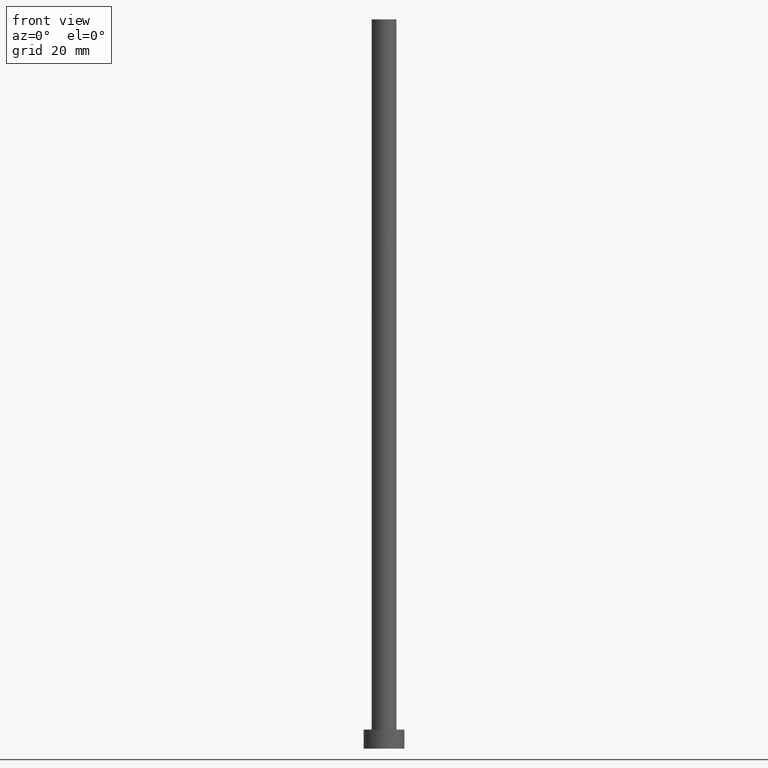
[diagram: clean part render]
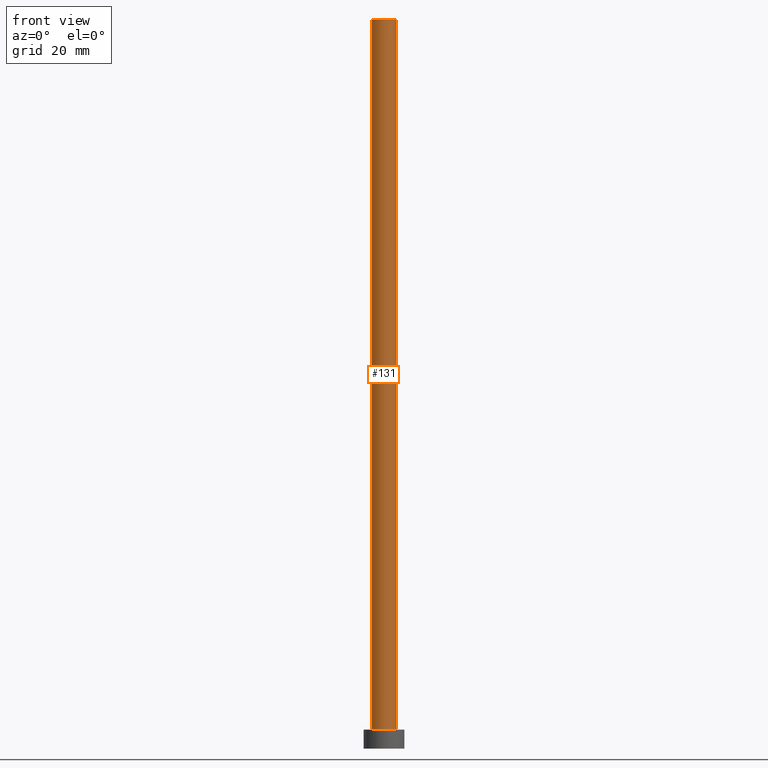
[diagram: same view with one face highlighted and labeled with its STEP entity id]
A machine part, front view. The second image highlights one B-rep face of the part: STEP entity #131.
In plain terms, the highlighted cylindrical surface (edge-blend (fillet) strip) has radius 4.25 mm, axis along (-0, -0, -1).
Its self-contained STEP definition (entity closure, byte-faithful):
#2 = DIRECTION ( 'NONE',  ( -1.000000000000000000, 0.000000000000000000, 0.000000000000000000 ) ) ;
#14 = CARTESIAN_POINT ( 'NONE',  ( -4.250000000000000000, 0.000000000000000000, 250.0000000000000000 ) ) ;
#20 = CARTESIAN_POINT ( 'NONE',  ( 4.250000000000000000, 5.204748896376250699E-16, 250.0000000000000000 ) ) ;
#25 = EDGE_CURVE ( 'NONE', #212, #250, #249, .T. ) ;
#33 = EDGE_LOOP ( 'NONE', ( #147, #170, #88, #226 ) ) ;
#35 = VERTEX_POINT ( 'NONE', #208 ) ;
#36 = DIRECTION ( 'NONE',  ( -0.000000000000000000, -0.000000000000000000, -1.000000000000000000 ) ) ;
#37 = CIRCLE ( 'NONE', #97, 4.250000000000000000 ) ;
#52 = CARTESIAN_POINT ( 'NONE',  ( 4.250000000000000000, 5.204748896376250699E-16, 250.0000000000000000 ) ) ;
#73 = EDGE_CURVE ( 'NONE', #130, #35, #187, .T. ) ;
#77 = AXIS2_PLACEMENT_3D ( 'NONE', #238, #240, #136 ) ;
#78 = DIRECTION ( 'NONE',  ( 1.000000000000000000, 0.000000000000000000, 0.000000000000000000 ) ) ;
#79 = CARTESIAN_POINT ( 'NONE',  ( 0.000000000000000000, 0.000000000000000000, 250.0000000000000000 ) ) ;
#80 = CARTESIAN_POINT ( 'NONE',  ( -4.250000000000000000, 0.000000000000000000, 250.0000000000000000 ) ) ;
#81 = VECTOR ( 'NONE', #36, 1000.000000000000000 ) ;
#87 = AXIS2_PLACEMENT_3D ( 'NONE', #79, #179, #2 ) ;
#88 = ORIENTED_EDGE ( 'NONE', *, *, #25, .T. ) ;
#97 = AXIS2_PLACEMENT_3D ( 'NONE', #195, #254, #78 ) ;
#98 = FACE_OUTER_BOUND ( 'NONE', #33, .T. ) ;
#109 = DIRECTION ( 'NONE',  ( -0.000000000000000000, -0.000000000000000000, -1.000000000000000000 ) ) ;
#122 = CARTESIAN_POINT ( 'NONE',  ( -4.250000000000000000, 0.000000000000000000, 6.500000000000000000 ) ) ;
#130 = VERTEX_POINT ( 'NONE', #20 ) ;
#131 = ADVANCED_FACE ( 'NONE', ( #98 ), #155, .T. ) ;
#136 = DIRECTION ( 'NONE',  ( 1.000000000000000000, 0.000000000000000000, 0.000000000000000000 ) ) ;
#147 = ORIENTED_EDGE ( 'NONE', *, *, #73, .F. ) ;
#149 = EDGE_CURVE ( 'NONE', #250, #35, #152, .T. ) ;
#152 = CIRCLE ( 'NONE', #77, 4.250000000000000000 ) ;
#155 = CYLINDRICAL_SURFACE ( 'NONE', #87, 4.250000000000000000 ) ;
#168 = EDGE_CURVE ( 'NONE', #212, #130, #37, .T. ) ;
#170 = ORIENTED_EDGE ( 'NONE', *, *, #168, .F. ) ;
#179 = DIRECTION ( 'NONE',  ( -0.000000000000000000, -0.000000000000000000, -1.000000000000000000 ) ) ;
#187 = LINE ( 'NONE', #52, #228 ) ;
#195 = CARTESIAN_POINT ( 'NONE',  ( 0.000000000000000000, 0.000000000000000000, 250.0000000000000000 ) ) ;
#208 = CARTESIAN_POINT ( 'NONE',  ( 4.250000000000000000, 5.204748896376250699E-16, 6.500000000000000000 ) ) ;
#212 = VERTEX_POINT ( 'NONE', #80 ) ;
#226 = ORIENTED_EDGE ( 'NONE', *, *, #149, .T. ) ;
#228 = VECTOR ( 'NONE', #109, 1000.000000000000000 ) ;
#238 = CARTESIAN_POINT ( 'NONE',  ( 0.000000000000000000, 0.000000000000000000, 6.500000000000000000 ) ) ;
#240 = DIRECTION ( 'NONE',  ( 0.000000000000000000, 0.000000000000000000, 1.000000000000000000 ) ) ;
#249 = LINE ( 'NONE', #14, #81 ) ;
#250 = VERTEX_POINT ( 'NONE', #122 ) ;
#254 = DIRECTION ( 'NONE',  ( 0.000000000000000000, 0.000000000000000000, 1.000000000000000000 ) ) ;